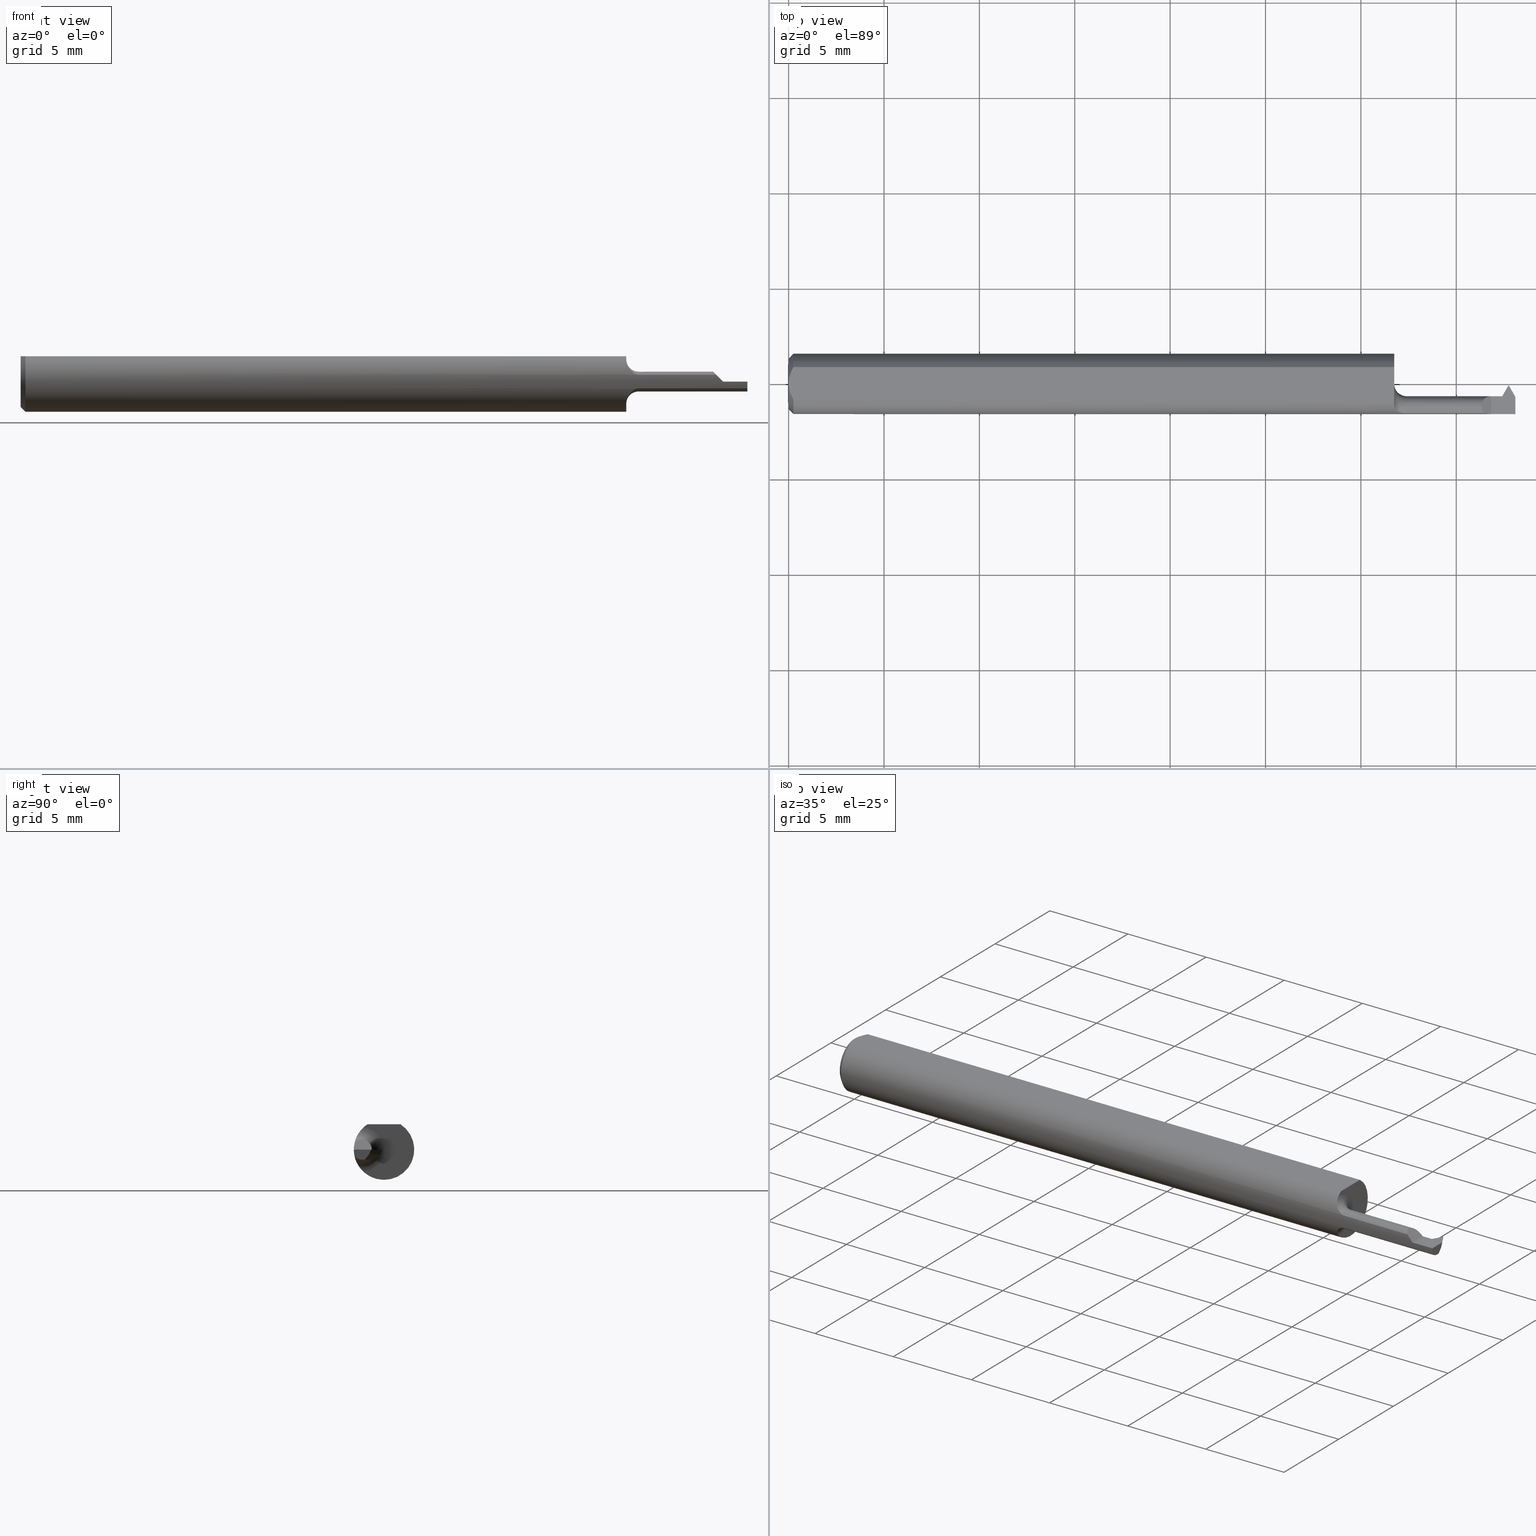
[diagram: canonical four-view strip — front | top / right | iso, engineering-drawing reading convention]
A machine part, canonical four-view strip (front | top / right | iso — engineering-drawing reading convention). The complete STEP part file that produces these views, byte-faithful:
ISO-10303-21;
HEADER;
FILE_DESCRIPTION (( 'STEP AP203' ),
    '1' );
FILE_NAME ('230022-TT060200.STEP',
    '2025-04-25T23:26:55',
    ( '' ),
    ( '' ),
    'SwSTEP 2.0',
    'SolidWorks 2024',
    '' );
FILE_SCHEMA (( 'CONFIG_CONTROL_DESIGN' ));
ENDSEC;

DATA;
#1 = DIRECTION ( 'NONE',  ( 3.846348412950270995E-17, -1.000000000000000000, 0.000000000000000000 ) ) ;
#2 = DIRECTION ( 'NONE',  ( -1.000000000000000000, -0.000000000000000000, -0.000000000000000000 ) ) ;
#3 = ORIENTED_EDGE ( 'NONE', *, *, #600, .F. ) ;
#4 = VECTOR ( 'NONE', #223, 39.37007874015748143 ) ;
#5 = CARTESIAN_POINT ( 'NONE',  ( 1.472798294077828807, -0.02534999999999998019, 0.000000000000000000 ) ) ;
#6 = CARTESIAN_POINT ( 'NONE',  ( 1.252087078649324781, -0.05320835086854511925, 0.03322816149382785966 ) ) ;
#7 = ORIENTED_EDGE ( 'NONE', *, *, #376, .T. ) ;
#8 = CARTESIAN_POINT ( 'NONE',  ( 1.470951421547187499, -0.02534999999999999060, 0.000000000000000000 ) ) ;
#9 = EDGE_CURVE ( 'NONE', #363, #492, #293, .T. ) ;
#10 = CARTESIAN_POINT ( 'NONE',  ( 1.500000000000000222, -0.02293526333106358367, 0.009332464125185995635 ) ) ;
#11 = EDGE_LOOP ( 'NONE', ( #14, #238, #382, #246 ) ) ;
#12 = CARTESIAN_POINT ( 'NONE',  ( 0.000000000000000000, 0.000000000000000000, 0.05234999999999997294 ) ) ;
#13 = CARTESIAN_POINT ( 'NONE',  ( 1.475581018059172633, -0.04585000000000002962, -0.02050000000000003555 ) ) ;
#14 = ORIENTED_EDGE ( 'NONE', *, *, #435, .T. ) ;
#15 = DATE_AND_TIME ( #29, #625 ) ;
#16 = VECTOR ( 'NONE', #591, 39.37007874015748143 ) ;
#17 = CARTESIAN_POINT ( 'NONE',  ( 1.472798294077828807, -0.02534999999999998019, 2.799589431923803002E-19 ) ) ;
#18 = VERTEX_POINT ( 'NONE', #97 ) ;
#19 = EDGE_CURVE ( 'NONE', #458, #546, #582, .T. ) ;
#20 = DIRECTION ( 'NONE',  ( 0.000000000000000000, 0.000000000000000000, -1.000000000000000000 ) ) ;
#21 = CC_DESIGN_SECURITY_CLASSIFICATION ( #254, ( #648 ) ) ;
#22 = CARTESIAN_POINT ( 'NONE',  ( 1.486500000000000155, -0.003350000000000004884, 0.000000000000000000 ) ) ;
#23 = VERTEX_POINT ( 'NONE', #641 ) ;
#24 = CYLINDRICAL_SURFACE ( 'NONE', #213, 0.02050000000000005290 ) ;
#25 = ORIENTED_EDGE ( 'NONE', *, *, #331, .T. ) ;
#26 = PERSON_AND_ORGANIZATION ( #183, #513 ) ;
#27 = DIMENSIONAL_EXPONENTS ( 1.000000000000000000, 0.000000000000000000, 0.000000000000000000, 0.000000000000000000, 0.000000000000000000, 0.000000000000000000, 0.000000000000000000 ) ;
#28 = DIRECTION ( 'NONE',  ( 4.529625918015469079E-15, -0.9799247046208295897, 0.1993679344171976342 ) ) ;
#29 = CALENDAR_DATE ( 2025, 25, 4 ) ;
#30 = B_SPLINE_CURVE_WITH_KNOTS ( 'NONE', 3,
 ( #440, #497, #6, #164, #659, #552, #229, #332 ),
 .UNSPECIFIED., .F., .F.,
 ( 4, 2, 2, 4 ),
 ( 4.183662842067274700E-06, 0.0006133011813381161964, 0.0009178599405861351647, 0.001222418699834154241 ),
 .UNSPECIFIED. ) ;
#31 = LOCAL_TIME ( 16, 26, 55.00000000000000000, #186 ) ;
#32 = EDGE_CURVE ( 'NONE', #569, #557, #489, .T. ) ;
#33 = CARTESIAN_POINT ( 'NONE',  ( 1.469838970708920556, -0.02590058561396286346, -0.005467870559428852743 ) ) ;
#34 = LINE ( 'NONE', #426, #261 ) ;
#35 = DIRECTION ( 'NONE',  ( 0.000000000000000000, 0.000000000000000000, -1.000000000000000000 ) ) ;
#36 = CARTESIAN_POINT ( 'NONE',  ( 0.01000000000000001582, 0.03386738844375224849, 0.05234999999999997294 ) ) ;
#37 = DIRECTION ( 'NONE',  ( -0.8486396879976035867, -0.4899623523104097989, 0.1993679344171976342 ) ) ;
#38 = CARTESIAN_POINT ( 'NONE',  ( 1.500000000000000222, 0.000000000000000000, 0.000000000000000000 ) ) ;
#39 = VECTOR ( 'NONE', #114, 39.37007874015748143 ) ;
#40 = ADVANCED_FACE ( 'NONE', ( #588 ), #468, .F. ) ;
#41 = PERSON_AND_ORGANIZATION ( #183, #513 ) ;
#42 = CARTESIAN_POINT ( 'NONE',  ( 0.01000000000000001582, 0.03386738844375224849, 0.05234999999999997294 ) ) ;
#43 = DIRECTION ( 'NONE',  ( -0.000000000000000000, 0.000000000000000000, 1.000000000000000000 ) ) ;
#44 = ORIENTED_EDGE ( 'NONE', *, *, #708, .F. ) ;
#45 = CC_DESIGN_PERSON_AND_ORGANIZATION_ASSIGNMENT ( #26, #624, ( #526 ) ) ;
#46 = DIRECTION ( 'NONE',  ( -1.000000000000000000, -0.000000000000000000, -0.000000000000000000 ) ) ;
#47 = EDGE_CURVE ( 'NONE', #303, #242, #263, .T. ) ;
#48 = CARTESIAN_POINT ( 'NONE',  ( 1.445250564478592015, -0.06235000000000000958, 0.004749435521408015490 ) ) ;
#49 = VERTEX_POINT ( 'NONE', #709 ) ;
#50 = LINE ( 'NONE', #500, #692 ) ;
#51 = DIRECTION ( 'NONE',  ( 0.000000000000000000, 0.000000000000000000, -1.000000000000000000 ) ) ;
#52 = EDGE_CURVE ( 'NONE', #49, #550, #253, .T. ) ;
#53 = VERTEX_POINT ( 'NONE', #262 ) ;
#54 = DIRECTION ( 'NONE',  ( 0.5000000000000042188, 0.8660254037844361541, 0.000000000000000000 ) ) ;
#55 = DIRECTION ( 'NONE',  ( 0.000000000000000000, -0.6427876096865350330, -0.7660444431189816772 ) ) ;
#56 = ORIENTED_EDGE ( 'NONE', *, *, #315, .T. ) ;
#57 = LINE ( 'NONE', #158, #177 ) ;
#58 = PLANE ( 'NONE',  #122 ) ;
#59 = ORIENTED_EDGE ( 'NONE', *, *, #248, .T. ) ;
#60 = ADVANCED_FACE ( 'NONE', ( #207 ), #86, .T. ) ;
#61 = LINE ( 'NONE', #162, #621 ) ;
#62 = CONICAL_SURFACE ( 'NONE', #524, 0.05235000000000005621, 0.7853981633974447263 ) ;
#63 = CARTESIAN_POINT ( 'NONE',  ( 1.274999999999999911, -0.06073604143947648748, -0.01409452979925874747 ) ) ;
#64 = ORIENTED_EDGE ( 'NONE', *, *, #686, .F. ) ;
#65 = CARTESIAN_POINT ( 'NONE',  ( 0.007163450771350545095, -0.02864528976618618133, 0.05234999999999997294 ) ) ;
#66 = CARTESIAN_POINT ( 'NONE',  ( 0.000000000000000000, 0.000000000000000000, 0.05234999999999997294 ) ) ;
#67 = ORIENTED_EDGE ( 'NONE', *, *, #639, .T. ) ;
#68 = DIRECTION ( 'NONE',  ( 0.000000000000000000, -1.000000000000000000, 0.000000000000000000 ) ) ;
#69 = ADVANCED_FACE ( 'NONE', ( #470 ), #191, .T. ) ;
#70 = ORIENTED_EDGE ( 'NONE', *, *, #221, .F. ) ;
#71 =( LENGTH_UNIT ( ) NAMED_UNIT ( * ) SI_UNIT ( $, .METRE. ) );
#72 = VECTOR ( 'NONE', #316, 39.37007874015748143 ) ;
#73 = AXIS2_PLACEMENT_3D ( 'NONE', #687, #184, #359 ) ;
#74 = DIRECTION ( 'NONE',  ( -0.5000000000000084377, 0.8660254037844337116, -3.001275745718258008E-17 ) ) ;
#75 = VERTEX_POINT ( 'NONE', #703 ) ;
#76 = APPROVAL_PERSON_ORGANIZATION ( #700, #501, #419 ) ;
#77 = CALENDAR_DATE ( 2025, 25, 4 ) ;
#78 = CARTESIAN_POINT ( 'NONE',  ( 1.485516618294335345, -0.007390262258351174528, -0.009999999999999849287 ) ) ;
#79 = ORIENTED_EDGE ( 'NONE', *, *, #661, .T. ) ;
#80 = FACE_OUTER_BOUND ( 'NONE', #416, .T. ) ;
#81 = DIRECTION ( 'NONE',  ( -0.7985882202808463060, 0.4610651239508160026, -0.3868795754558377875 ) ) ;
#82 = CARTESIAN_POINT ( 'NONE',  ( 0.000000000000000000, 0.000000000000000000, 0.000000000000000000 ) ) ;
#83 = ADVANCED_FACE ( 'NONE', ( #697 ), #149, .F. ) ;
#84 = CARTESIAN_POINT ( 'NONE',  ( 1.435905470200741219, -0.06073604143947652217, 0.01409452979925866420 ) ) ;
#85 = AXIS2_PLACEMENT_3D ( 'NONE', #431, #604, #274 ) ;
#86 = PLANE ( 'NONE',  #535 ) ;
#87 = VECTOR ( 'NONE', #538, 39.37007874015748143 ) ;
#88 = FACE_OUTER_BOUND ( 'NONE', #154, .T. ) ;
#89 = ORIENTED_EDGE ( 'NONE', *, *, #103, .T. ) ;
#90 = CALENDAR_DATE ( 2025, 25, 4 ) ;
#91 = DIRECTION ( 'NONE',  ( -0.7071067811865431318, 0.000000000000000000, -0.7071067811865520136 ) ) ;
#92 = DIRECTION ( 'NONE',  ( 1.000000000000000000, 0.000000000000000000, 0.000000000000000000 ) ) ;
#93 = DIRECTION ( 'NONE',  ( 0.7985882202808431973, 0.4610651239508192778, -0.3868795754558405076 ) ) ;
#94 = ADVANCED_FACE ( 'NONE', ( #88 ), #530, .F. ) ;
#95 = EDGE_LOOP ( 'NONE', ( #329, #172, #414, #201 ) ) ;
#96 = PLANE ( 'NONE',  #187 ) ;
#97 = CARTESIAN_POINT ( 'NONE',  ( 1.250000000000000000, -0.04274258451472191106, -0.04539376575039633099 ) ) ;
#98 = VECTOR ( 'NONE', #325, 39.37007874015748143 ) ;
#99 = CONICAL_SURFACE ( 'NONE', #239, 0.05235000000000005621, 0.7853981633974447263 ) ;
#100 = CC_DESIGN_PERSON_AND_ORGANIZATION_ASSIGNMENT ( #41, #651, ( #254 ) ) ;
#101 = DIRECTION ( 'NONE',  ( 1.000000000000000000, 0.000000000000000000, 0.000000000000000000 ) ) ;
#102 = EDGE_LOOP ( 'NONE', ( #128, #326, #7, #234 ) ) ;
#103 = EDGE_CURVE ( 'NONE', #627, #344, #638, .T. ) ;
#104 = LINE ( 'NONE', #556, #150 ) ;
#105 = ORIENTED_EDGE ( 'NONE', *, *, #364, .T. ) ;
#106 = DIRECTION ( 'NONE',  ( -1.000000000000000000, -0.000000000000000000, -0.000000000000000000 ) ) ;
#107 = ADVANCED_FACE ( 'NONE', ( #378 ), #138, .F. ) ;
#108 = DIRECTION ( 'NONE',  ( -1.000000000000000000, 0.000000000000000000, 1.224646799147359863E-16 ) ) ;
#109 = ORIENTED_EDGE ( 'NONE', *, *, #163, .F. ) ;
#110 = CIRCLE ( 'NONE', #161, 0.06235000000000000264 ) ;
#111 = DIRECTION ( 'NONE',  ( 0.000000000000000000, 0.000000000000000000, 1.000000000000000000 ) ) ;
#112 = LINE ( 'NONE', #337, #175 ) ;
#113 = ORIENTED_EDGE ( 'NONE', *, *, #347, .F. ) ;
#114 = DIRECTION ( 'NONE',  ( -1.000000000000000000, -0.000000000000000000, -0.000000000000000000 ) ) ;
#115 = CARTESIAN_POINT ( 'NONE',  ( 1.252117253329443791, -0.05323027456427581461, -0.03318292701701414799 ) ) ;
#116 = EDGE_CURVE ( 'NONE', #344, #75, #672, .T. ) ;
#117 = ORIENTED_EDGE ( 'NONE', *, *, #233, .F. ) ;
#118 = CARTESIAN_POINT ( 'NONE',  ( 1.477508393106610640, -1.476818358042274015, 0.2535462904163692244 ) ) ;
#119 = CARTESIAN_POINT ( 'NONE',  ( 1.250000000000000000, -0.04585000000000003656, 0.000000000000000000 ) ) ;
#120 = ORIENTED_EDGE ( 'NONE', *, *, #202, .F. ) ;
#121 = CLOSED_SHELL ( 'NONE', ( #418, #40, #444, #107, #482, #453, #567, #94, #695, #531, #195, #623, #459, #698, #545, #388, #586, #383, #83, #69, #60 ) ) ;
#122 = AXIS2_PLACEMENT_3D ( 'NONE', #389, #340, #108 ) ;
#123 = FACE_OUTER_BOUND ( 'NONE', #508, .T. ) ;
#124 = CARTESIAN_POINT ( 'NONE',  ( 1.435905470200741219, -0.06073604143947652217, 0.01409452979925866420 ) ) ;
#125 = EDGE_LOOP ( 'NONE', ( #684, #89, #554, #518 ) ) ;
#126 = DIRECTION ( 'NONE',  ( 1.000000000000000000, 0.000000000000000000, 0.000000000000000000 ) ) ;
#127 = CARTESIAN_POINT ( 'NONE',  ( 1.473739173235127708, -0.02697965050423148728, -0.008009988134028740367 ) ) ;
#128 = ORIENTED_EDGE ( 'NONE', *, *, #275, .F. ) ;
#129 = EDGE_CURVE ( 'NONE', #515, #677, #393, .T. ) ;
#130 = ORIENTED_EDGE ( 'NONE', *, *, #323, .F. ) ;
#131 = LINE ( 'NONE', #693, #271 ) ;
#132 = AXIS2_PLACEMENT_3D ( 'NONE', #155, #217, #436 ) ;
#133 = VERTEX_POINT ( 'NONE', #494 ) ;
#134 = CARTESIAN_POINT ( 'NONE',  ( 0.000000000000000000, 0.000000000000000000, 0.000000000000000000 ) ) ;
#135 = DIRECTION ( 'NONE',  ( 0.8486396879976055851, -0.4899623523104063572, 0.1993679344171976342 ) ) ;
#136 = ORIENTED_EDGE ( 'NONE', *, *, #507, .F. ) ;
#137 = EDGE_CURVE ( 'NONE', #374, #363, #597, .T. ) ;
#138 = PLANE ( 'NONE',  #632 ) ;
#139 = PERSON_AND_ORGANIZATION ( #183, #513 ) ;
#140 = DIRECTION ( 'NONE',  ( -0.000000000000000000, 4.075592278182146697E-17, 1.000000000000000000 ) ) ;
#141 = ORIENTED_EDGE ( 'NONE', *, *, #427, .F. ) ;
#142 = EDGE_CURVE ( 'NONE', #370, #18, #281, .T. ) ;
#143 = PLANE ( 'NONE',  #321 ) ;
#144 = CARTESIAN_POINT ( 'NONE',  ( 1.486483381705665519, -0.007390262258356626764, -0.01000000000000609603 ) ) ;
#145 = ORIENTED_EDGE ( 'NONE', *, *, #142, .T. ) ;
#146 = APPROVAL_DATE_TIME ( #196, #501 ) ;
#147 = CARTESIAN_POINT ( 'NONE',  ( 1.671951421547187788, -0.04584999999999996717, -0.02050000000000002168 ) ) ;
#148 = CARTESIAN_POINT ( 'NONE',  ( 0.004671770759546950945, 0.02323517832780109052, 0.05234999999999998682 ) ) ;
#149 = PLANE ( 'NONE',  #665 ) ;
#150 = VECTOR ( 'NONE', #663, 39.37007874015748854 ) ;
#151 = ORIENTED_EDGE ( 'NONE', *, *, #355, .T. ) ;
#152 = VECTOR ( 'NONE', #74, 39.37007874015748854 ) ;
#153 = DIRECTION ( 'NONE',  ( 0.000000000000000000, 0.000000000000000000, -1.000000000000000000 ) ) ;
#154 = EDGE_LOOP ( 'NONE', ( #657, #79, #25, #446 ) ) ;
#155 = CARTESIAN_POINT ( 'NONE',  ( 0.000000000000000000, 0.000000000000000000, 0.000000000000000000 ) ) ;
#156 = CARTESIAN_POINT ( 'NONE',  ( 1.250000000000000000, -0.04274258451472191106, -0.04539376575039633099 ) ) ;
#157 = EDGE_LOOP ( 'NONE', ( #192, #109, #543, #664, #44, #3, #599, #629 ) ) ;
#158 = CARTESIAN_POINT ( 'NONE',  ( 1.250000000000000000, -0.02697965050422692843, -0.008009988134034759857 ) ) ;
#159 = DIRECTION ( 'NONE',  ( 0.000000000000000000, 0.000000000000000000, 1.000000000000000000 ) ) ;
#160 = ORIENTED_EDGE ( 'NONE', *, *, #32, .F. ) ;
#161 = AXIS2_PLACEMENT_3D ( 'NONE', #581, #528, #312 ) ;
#162 = CARTESIAN_POINT ( 'NONE',  ( 1.671951421547187788, -0.04584999999999996717, -0.02050000000000002168 ) ) ;
#163 = EDGE_CURVE ( 'NONE', #610, #242, #104, .T. ) ;
#164 = CARTESIAN_POINT ( 'NONE',  ( 1.258393315188583994, -0.05769563112685629352, 0.02388861346910408148 ) ) ;
#165 = ORIENTED_EDGE ( 'NONE', *, *, #427, .T. ) ;
#166 = LINE ( 'NONE', #272, #346 ) ;
#167 = CARTESIAN_POINT ( 'NONE',  ( 1.500000000000000222, -0.04585000000000002962, 0.000000000000000000 ) ) ;
#168 = APPROVAL ( #575, 'UNSPECIFIED' ) ;
#169 = ORIENTED_EDGE ( 'NONE', *, *, #715, .T. ) ;
#170 = PLANE ( 'NONE',  #634 ) ;
#171 = PLANE ( 'NONE',  #73 ) ;
#172 = ORIENTED_EDGE ( 'NONE', *, *, #47, .T. ) ;
#173 = EDGE_CURVE ( 'NONE', #53, #677, #559, .T. ) ;
#174 = PRODUCT_DEFINITION_SHAPE ( 'NONE', 'NONE',  #526 ) ;
#175 = VECTOR ( 'NONE', #101, 39.37007874015748143 ) ;
#176 = PERSON_AND_ORGANIZATION ( #183, #513 ) ;
#177 = VECTOR ( 'NONE', #231, 39.37007874015748143 ) ;
#178 = CARTESIAN_POINT ( 'NONE',  ( 1.545688868235870261, -0.1187477191428603085, -0.02050000000000001821 ) ) ;
#179 = ORIENTED_EDGE ( 'NONE', *, *, #221, .T. ) ;
#180 = DIRECTION ( 'NONE',  ( 5.352393807291138713E-15, -0.6427876096865350330, -0.7660444431189816772 ) ) ;
#181 = ORIENTED_EDGE ( 'NONE', *, *, #666, .F. ) ;
#182 = DIRECTION ( 'NONE',  ( -0.000000000000000000, 1.000000000000000000, -0.000000000000000000 ) ) ;
#183 = PERSON ( 'UNSPECIFIED', 'UNSPECIFIED', 'UNSPECIFIED', ('UNSPECIFIED'), ('UNSPECIFIED'), ('UNSPECIFIED') ) ;
#184 = DIRECTION ( 'NONE',  ( 0.000000000000000000, -0.9271838545667896447, 0.3746065934159064081 ) ) ;
#185 = ORIENTED_EDGE ( 'NONE', *, *, #507, .T. ) ;
#186 = COORDINATED_UNIVERSAL_TIME_OFFSET ( 8, 0, .BEHIND. ) ;
#187 = AXIS2_PLACEMENT_3D ( 'NONE', #372, #37, #259 ) ;
#188 = ORIENTED_EDGE ( 'NONE', *, *, #409, .T. ) ;
#189 = LINE ( 'NONE', #635, #226 ) ;
#190 = CARTESIAN_POINT ( 'NONE',  ( 1.274999999999999911, -0.04585000000000003656, 0.000000000000000000 ) ) ;
#191 = PLANE ( 'NONE',  #572 ) ;
#192 = ORIENTED_EDGE ( 'NONE', *, *, #487, .F. ) ;
#193 = APPROVAL_DATE_TIME ( #408, #637 ) ;
#194 = DIRECTION ( 'NONE',  ( -0.9799247046208295897, 0.000000000000000000, 0.1993679344171976342 ) ) ;
#195 = ADVANCED_FACE ( 'NONE', ( #656 ), #58, .F. ) ;
#196 = DATE_AND_TIME ( #90, #243 ) ;
#197 = DIRECTION ( 'NONE',  ( 1.000000000000000000, 3.846348412950270995E-17, 0.000000000000000000 ) ) ;
#198 = PLANE ( 'NONE',  #574 ) ;
#199 = VECTOR ( 'NONE', #680, 39.37007874015748854 ) ;
#200 = CARTESIAN_POINT ( 'NONE',  ( 1.472798294077828807, -0.02534999999999998019, 0.000000000000000000 ) ) ;
#201 = ORIENTED_EDGE ( 'NONE', *, *, #467, .T. ) ;
#202 = EDGE_CURVE ( 'NONE', #334, #492, #522, .T. ) ;
#203 = DIRECTION ( 'NONE',  ( -0.7071067811865519026, 0.000000000000000000, 0.7071067811865430208 ) ) ;
#204 = DIRECTION ( 'NONE',  ( 0.000000000000000000, 0.000000000000000000, -1.000000000000000000 ) ) ;
#205 = CARTESIAN_POINT ( 'NONE',  ( 0.007185421074056362600, 0.02868573718286564905, 0.05234999999999997294 ) ) ;
#206 = SECURITY_CLASSIFICATION_LEVEL ( 'unclassified' ) ;
#207 = FACE_OUTER_BOUND ( 'NONE', #653, .T. ) ;
#208 = VECTOR ( 'NONE', #652, 39.37007874015748854 ) ;
#209 = CARTESIAN_POINT ( 'NONE',  ( 1.249999999999999778, -0.04862953753773307380, -0.03985063481687040055 ) ) ;
#210 = EDGE_CURVE ( 'NONE', #495, #344, #609, .T. ) ;
#211 = VECTOR ( 'NONE', #180, 39.37007874015748143 ) ;
#212 = ORIENTED_EDGE ( 'NONE', *, *, #355, .F. ) ;
#213 = AXIS2_PLACEMENT_3D ( 'NONE', #119, #576, #68 ) ;
#214 = LOCAL_TIME ( 16, 26, 55.00000000000000000, #430 ) ;
#215 = CARTESIAN_POINT ( 'NONE',  ( 1.485500000000000265, -0.003350000000000004884, 0.000000000000000000 ) ) ;
#216 = ORIENTED_EDGE ( 'NONE', *, *, #553, .T. ) ;
#217 = DIRECTION ( 'NONE',  ( -1.000000000000000000, -0.000000000000000000, -0.000000000000000000 ) ) ;
#218 =( BOUNDED_CURVE ( )  B_SPLINE_CURVE ( 3, ( #124, #236, #615, #460 ),
 .UNSPECIFIED., .F., .F. ) 
 B_SPLINE_CURVE_WITH_KNOTS ( ( 4, 4 ),
 ( 5.470482129107344882, 7.853981633974481902 ),
 .UNSPECIFIED. ) 
 CURVE ( )  GEOMETRIC_REPRESENTATION_ITEM ( )  RATIONAL_B_SPLINE_CURVE ( ( 1.000000000000000000, 0.5800232588578040360, 0.5800232588578040360, 1.000000000000000000 ) ) 
 REPRESENTATION_ITEM ( '' )  );
#219 = CARTESIAN_POINT ( 'NONE',  ( 1.267174290130400394, -0.06030086259927001230, -0.01605959189429576051 ) ) ;
#220 = VERTEX_POINT ( 'NONE', #381 ) ;
#221 = EDGE_CURVE ( 'NONE', #23, #289, #30, .T. ) ;
#222 = CARTESIAN_POINT ( 'NONE',  ( 1.500000000000000222, -0.03961227801801520815, -0.02050000000000001821 ) ) ;
#223 = DIRECTION ( 'NONE',  ( -0.1073577180708719797, 0.5233600211179580963, 0.8453216007331325610 ) ) ;
#224 = ORIENTED_EDGE ( 'NONE', *, *, #173, .T. ) ;
#225 = AXIS2_PLACEMENT_3D ( 'NONE', #200, #28, #429 ) ;
#226 = VECTOR ( 'NONE', #685, 39.37007874015748143 ) ;
#227 = CARTESIAN_POINT ( 'NONE',  ( 1.450000000000000178, -0.02534999999999998019, 3.061616997868399042E-17 ) ) ;
#228 = CC_DESIGN_DATE_AND_TIME_ASSIGNMENT ( #544, #264, ( #254 ) ) ;
#229 = CARTESIAN_POINT ( 'NONE',  ( 1.270918107686048959, -0.06073604143947845813, 0.01409452979925067233 ) ) ;
#230 = EDGE_LOOP ( 'NONE', ( #67, #707 ) ) ;
#231 = DIRECTION ( 'NONE',  ( -1.000000000000000000, -3.846348412950270995E-17, -0.000000000000000000 ) ) ;
#232 = LINE ( 'NONE', #514, #498 ) ;
#233 = EDGE_CURVE ( 'NONE', #605, #442, #671, .T. ) ;
#234 = ORIENTED_EDGE ( 'NONE', *, *, #315, .F. ) ;
#235 = CYLINDRICAL_SURFACE ( 'NONE', #132, 0.06235000000000000264 ) ;
#236 = CARTESIAN_POINT ( 'NONE',  ( 1.420010247461813702, -0.04568598992171429146, 0.02998975253818596948 ) ) ;
#237 = EDGE_CURVE ( 'NONE', #589, #711, #112, .T. ) ;
#238 = ORIENTED_EDGE ( 'NONE', *, *, #715, .F. ) ;
#239 = AXIS2_PLACEMENT_3D ( 'NONE', #564, #472, #204 ) ;
#240 = CALENDAR_DATE ( 2025, 25, 4 ) ;
#241 = DIRECTION ( 'NONE',  ( -0.1143501000964234349, 0.1980601832175888644, 0.9734969021171833159 ) ) ;
#242 = VERTEX_POINT ( 'NONE', #215 ) ;
#243 = LOCAL_TIME ( 16, 26, 55.00000000000000000, #540 ) ;
#244 = LENGTH_MEASURE_WITH_UNIT ( LENGTH_MEASURE( 0.02539999999999999897 ), #71 );
#245 = DIRECTION ( 'NONE',  ( 0.4999999999999948375, -0.8660254037844414832, 0.000000000000000000 ) ) ;
#246 = ORIENTED_EDGE ( 'NONE', *, *, #323, .T. ) ;
#247 = PERSON_AND_ORGANIZATION ( #183, #513 ) ;
#248 = EDGE_CURVE ( 'NONE', #53, #49, #619, .T. ) ;
#249 = CARTESIAN_POINT ( 'NONE',  ( 1.373475710773593983, -0.06073604143947651524, 0.01409452979925868328 ) ) ;
#250 = ORIENTED_EDGE ( 'NONE', *, *, #210, .T. ) ;
#251 = APPLICATION_PROTOCOL_DEFINITION ( 'international standard', 'config_control_design', 1994, #523 ) ;
#252 = VECTOR ( 'NONE', #585, 39.37007874015748143 ) ;
#253 = LINE ( 'NONE', #424, #72 ) ;
#254 = SECURITY_CLASSIFICATION ( '', '', #206 ) ;
#255 = ORIENTED_EDGE ( 'NONE', *, *, #129, .T. ) ;
#256 = CARTESIAN_POINT ( 'NONE',  ( 1.486496470769701705, -0.004208031256919916863, -0.002123701883822748035 ) ) ;
#257 = DIRECTION ( 'NONE',  ( 0.1993679344171976064, 0.000000000000000000, 0.9799247046208294787 ) ) ;
#258 = EDGE_CURVE ( 'NONE', #711, #23, #679, .T. ) ;
#259 = DIRECTION ( 'NONE',  ( 0.4999999999999948375, -0.8660254037844414832, 0.000000000000000000 ) ) ;
#260 = VECTOR ( 'NONE', #650, 39.37007874015748143 ) ;
#261 = VECTOR ( 'NONE', #541, 39.37007874015749564 ) ;
#262 = CARTESIAN_POINT ( 'NONE',  ( 1.500000000000000222, -0.06073604143947645279, -0.01409452979925867808 ) ) ;
#263 = LINE ( 'NONE', #480, #16 ) ;
#264 = DATE_TIME_ROLE ( 'classification_date' ) ;
#265 = EDGE_CURVE ( 'NONE', #133, #492, #437, .T. ) ;
#266 = CARTESIAN_POINT ( 'NONE',  ( 1.531535333950211131, -0.3079965118900795940, -0.4632393879296300976 ) ) ;
#267 = ORIENTED_EDGE ( 'NONE', *, *, #116, .F. ) ;
#268 = CARTESIAN_POINT ( 'NONE',  ( 1.270918043451031210, -0.06073604143947650830, -0.01409452979925873532 ) ) ;
#269 = AXIS2_PLACEMENT_3D ( 'NONE', #167, #433, #598 ) ;
#270 = ORIENTED_EDGE ( 'NONE', *, *, #237, .F. ) ;
#271 = VECTOR ( 'NONE', #182, 39.37007874015748143 ) ;
#272 = CARTESIAN_POINT ( 'NONE',  ( -3.937007874019685528E-05, -0.01620080838571287193, -0.02050000000000002168 ) ) ;
#273 = CC_DESIGN_APPROVAL ( #168, ( #526 ) ) ;
#274 = DIRECTION ( 'NONE',  ( 0.000000000000000000, 1.000000000000000000, 0.000000000000000000 ) ) ;
#275 = EDGE_CURVE ( 'NONE', #546, #434, #451, .T. ) ;
#276 = ORIENTED_EDGE ( 'NONE', *, *, #666, .T. ) ;
#277 = FACE_OUTER_BOUND ( 'NONE', #307, .T. ) ;
#278 = CARTESIAN_POINT ( 'NONE',  ( -3.937007874019685528E-05, -0.007390262258351511931, -0.01000000000000000021 ) ) ;
#279 = EDGE_LOOP ( 'NONE', ( #636, #169, #622, #669, #64 ) ) ;
#280 = DIRECTION ( 'NONE',  ( -1.000000000000000000, -3.846348412950270995E-17, -0.000000000000000000 ) ) ;
#281 = B_SPLINE_CURVE_WITH_KNOTS ( 'NONE', 3,
 ( #483, #268, #219, #714, #710, #115, #209, #156 ),
 .UNSPECIFIED., .F., .F.,
 ( 4, 2, 2, 4 ),
 ( 1.967541529506627283E-07, 0.0003062111729972520212, 0.0006122255918415536171, 0.001224254429530156809 ),
 .UNSPECIFIED. ) ;
#282 = CARTESIAN_POINT ( 'NONE',  ( 0.01000000000000001582, 0.000000000000000000, 0.000000000000000000 ) ) ;
#283 = ORIENTED_EDGE ( 'NONE', *, *, #631, .F. ) ;
#284 = AXIS2_PLACEMENT_3D ( 'NONE', #668, #2, #51 ) ;
#285 = VECTOR ( 'NONE', #197, 39.37007874015748143 ) ;
#286 = DIRECTION ( 'NONE',  ( 0.9934405138748531039, 0.02279774325662875870, 0.1120544880603747268 ) ) ;
#287 = MANIFOLD_SOLID_BREP ( 'Cut-Sweep1', #121 ) ;
#288 = DIRECTION ( 'NONE',  ( 0.000000000000000000, -1.000000000000000000, 0.000000000000000000 ) ) ;
#289 = VERTEX_POINT ( 'NONE', #502 ) ;
#290 = CARTESIAN_POINT ( 'NONE',  ( 0.004679365186781183836, -0.02325953974079657954, 0.05234999999999997988 ) ) ;
#291 = CARTESIAN_POINT ( 'NONE',  ( 1.475386358967280431, -0.03736748372183631289, -0.02050000000000005984 ) ) ;
#292 = ORIENTED_EDGE ( 'NONE', *, *, #553, .F. ) ;
#293 = B_SPLINE_CURVE_WITH_KNOTS ( 'NONE', 3,
 ( #694, #375, #373, #148, #205, #36 ),
 .UNSPECIFIED., .F., .F.,
 ( 4, 2, 4 ),
 ( 0.003093386807937201135, 0.003544501666246021275, 0.003995616524554840981 ),
 .UNSPECIFIED. ) ;
#294 = FACE_OUTER_BOUND ( 'NONE', #230, .T. ) ;
#295 = LINE ( 'NONE', #302, #333 ) ;
#296 = ORIENTED_EDGE ( 'NONE', *, *, #32, .T. ) ;
#297 = AXIS2_PLACEMENT_3D ( 'NONE', #670, #399, #658 ) ;
#298 =( NAMED_UNIT ( * ) PLANE_ANGLE_UNIT ( ) SI_UNIT ( $, .RADIAN. ) );
#299 = CARTESIAN_POINT ( 'NONE',  ( 0.01000000000000001582, 0.000000000000000000, -0.06235000000000000264 ) ) ;
#300 = ORIENTED_EDGE ( 'NONE', *, *, #331, .F. ) ;
#301 = CARTESIAN_POINT ( 'NONE',  ( 1.500000000000000222, -0.03080173189065360181, -0.009999999999999849287 ) ) ;
#302 = CARTESIAN_POINT ( 'NONE',  ( 1.472798294077828807, -0.02534999999999998019, 0.000000000000000000 ) ) ;
#303 = VERTEX_POINT ( 'NONE', #78 ) ;
#304 = CC_DESIGN_PERSON_AND_ORGANIZATION_ASSIGNMENT ( #455, #570, ( #504 ) ) ;
#305 = APPROVAL_ROLE ( '' ) ;
#306 = CARTESIAN_POINT ( 'NONE',  ( 1.373475710773593983, -0.06073604143947651524, -0.01409452979925868328 ) ) ;
#307 = EDGE_LOOP ( 'NONE', ( #136, #224, #411, #688, #633, #70, #579, #270, #391, #602, #512, #464, #503 ) ) ;
#308 = DIRECTION ( 'NONE',  ( 1.000000000000000000, 0.000000000000000000, 0.000000000000000000 ) ) ;
#309 = VECTOR ( 'NONE', #560, 39.37007874015748143 ) ;
#310 = EDGE_CURVE ( 'NONE', #303, #627, #571, .T. ) ;
#311 = AXIS2_PLACEMENT_3D ( 'NONE', #118, #286, #335 ) ;
#312 = DIRECTION ( 'NONE',  ( 0.000000000000000000, 1.000000000000000000, 0.000000000000000000 ) ) ;
#313 = EDGE_LOOP ( 'NONE', ( #613, #461, #438, #120 ) ) ;
#314 = CARTESIAN_POINT ( 'NONE',  ( 0.000000000000000000, 0.000000000000000000, 0.000000000000000000 ) ) ;
#315 = EDGE_CURVE ( 'NONE', #434, #515, #683, .T. ) ;
#316 = DIRECTION ( 'NONE',  ( 0.000000000000000000, 1.000000000000000000, -4.075592278182146697E-17 ) ) ;
#317 = ORIENTED_EDGE ( 'NONE', *, *, #708, .T. ) ;
#318 = PERSON_AND_ORGANIZATION_ROLE ( 'design_supplier' ) ;
#319 = FACE_OUTER_BOUND ( 'NONE', #313, .T. ) ;
#320 = DIRECTION ( 'NONE',  ( -0.5000000000000083267, 0.8660254037844337116, 0.000000000000000000 ) ) ;
#321 = AXIS2_PLACEMENT_3D ( 'NONE', #423, #135, #368 ) ;
#322 = DIRECTION ( 'NONE',  ( -1.000000000000000000, 0.000000000000000000, -0.000000000000000000 ) ) ;
#323 = EDGE_CURVE ( 'NONE', #23, #18, #712, .T. ) ;
#324 = PERSON_AND_ORGANIZATION ( #183, #513 ) ;
#325 = DIRECTION ( 'NONE',  ( 0.000000000000000000, -1.000000000000000000, 0.000000000000000000 ) ) ;
#326 = ORIENTED_EDGE ( 'NONE', *, *, #467, .F. ) ;
#327 = UNCERTAINTY_MEASURE_WITH_UNIT (LENGTH_MEASURE( 1.000000000000000082E-05 ), #678, 'distance_accuracy_value', 'NONE');
#328 = CARTESIAN_POINT ( 'NONE',  ( 1.475684376837079537, -0.05035398955201253468, -0.02050000000000002168 ) ) ;
#329 = ORIENTED_EDGE ( 'NONE', *, *, #608, .F. ) ;
#330 = CARTESIAN_POINT ( 'NONE',  ( 1.630958352158234037, 0.06235000000000000264, 0.05234999999999997294 ) ) ;
#331 = EDGE_CURVE ( 'NONE', #569, #557, #396, .T. ) ;
#332 = CARTESIAN_POINT ( 'NONE',  ( 1.274999999999999911, -0.06073604143947648748, 0.01409452979925874747 ) ) ;
#333 = VECTOR ( 'NONE', #400, 39.37007874015748143 ) ;
#334 = VERTEX_POINT ( 'NONE', #299 ) ;
#335 = DIRECTION ( 'NONE',  ( 0.1120836188533305133, 0.000000000000000000, -0.9936987784961504033 ) ) ;
#336 = CC_DESIGN_APPROVAL ( #637, ( #648 ) ) ;
#337 = CARTESIAN_POINT ( 'NONE',  ( 0.000000000000000000, -0.03386738844375224849, 0.05234999999999997294 ) ) ;
#338 = ORIENTED_EDGE ( 'NONE', *, *, #412, .T. ) ;
#339 = LINE ( 'NONE', #606, #537 ) ;
#340 = DIRECTION ( 'NONE',  ( -1.224646799147359863E-16, 0.000000000000000000, -1.000000000000000000 ) ) ;
#341 = ORIENTED_EDGE ( 'NONE', *, *, #275, .T. ) ;
#342 = CARTESIAN_POINT ( 'NONE',  ( 1.450000000000000178, -0.06235000000000005121, 6.123233995736799470E-18 ) ) ;
#343 = DIRECTION ( 'NONE',  ( 0.5000000000000084377, -0.8660254037844337116, 0.000000000000000000 ) ) ;
#344 = VERTEX_POINT ( 'NONE', #410 ) ;
#345 = B_SPLINE_CURVE_WITH_KNOTS ( 'NONE', 3,
 ( #563, #65, #290, #505, #547, #12 ),
 .UNSPECIFIED., .F., .F.,
 ( 4, 2, 4 ),
 ( 0.002189598257423869179, 0.002641492532680535157, 0.003093386807937201135 ),
 .UNSPECIFIED. ) ;
#346 = VECTOR ( 'NONE', #395, 39.37007874015748143 ) ;
#347 = EDGE_CURVE ( 'NONE', #550, #458, #628, .T. ) ;
#348 = CARTESIAN_POINT ( 'NONE',  ( 0.01000000000000001582, 0.000000000000000000, 0.000000000000000000 ) ) ;
#349 = FACE_OUTER_BOUND ( 'NONE', #432, .T. ) ;
#350 = ORIENTED_EDGE ( 'NONE', *, *, #364, .F. ) ;
#351 = CARTESIAN_POINT ( 'NONE',  ( 1.250000000000000000, -0.03386738844375225543, 0.05234999999999997294 ) ) ;
#352 = DIRECTION ( 'NONE',  ( 0.7071067811865499042, 0.000000000000000000, -0.7071067811865450192 ) ) ;
#353 = EDGE_LOOP ( 'NONE', ( #283, #360, #188, #573, #532 ) ) ;
#354 = LINE ( 'NONE', #22, #643 ) ;
#355 = EDGE_CURVE ( 'NONE', #495, #366, #466, .T. ) ;
#356 = ORIENTED_EDGE ( 'NONE', *, *, #661, .F. ) ;
#357 = AXIS2_PLACEMENT_3D ( 'NONE', #617, #280, #1 ) ;
#358 = APPLICATION_PROTOCOL_DEFINITION ( 'international standard', 'config_control_design', 1994, #566 ) ;
#359 = DIRECTION ( 'NONE',  ( 0.000000000000000000, -0.3746065934159064081, -0.9271838545667896447 ) ) ;
#360 = ORIENTED_EDGE ( 'NONE', *, *, #511, .T. ) ;
#361 = CC_DESIGN_PERSON_AND_ORGANIZATION_ASSIGNMENT ( #324, #318, ( #648 ) ) ;
#362 = LINE ( 'NONE', #301, #681 ) ;
#363 = VERTEX_POINT ( 'NONE', #66 ) ;
#364 = EDGE_CURVE ( 'NONE', #442, #592, #218, .T. ) ;
#365 =( NAMED_UNIT ( * ) SI_UNIT ( $, .STERADIAN. ) SOLID_ANGLE_UNIT ( ) );
#366 = VERTEX_POINT ( 'NONE', #127 ) ;
#367 = EDGE_CURVE ( 'NONE', #374, #334, #232, .T. ) ;
#368 = DIRECTION ( 'NONE',  ( 0.4999999999999913403, 0.8660254037844434816, 0.000000000000000000 ) ) ;
#369 = CARTESIAN_POINT ( 'NONE',  ( 1.470389556322883484, -0.02534999999999997325, -0.002761655807752544118 ) ) ;
#370 = VERTEX_POINT ( 'NONE', #63 ) ;
#371 = CARTESIAN_POINT ( 'NONE',  ( 1.450000000000000178, -0.2500000000000000555, 6.123233995736799470E-18 ) ) ;
#372 = CARTESIAN_POINT ( 'NONE',  ( 1.486500000000000155, -0.003350000000000004884, 0.000000000000000000 ) ) ;
#373 = CARTESIAN_POINT ( 'NONE',  ( 0.001063697276021587047, 0.01189177144351697378, 0.05234999999999997988 ) ) ;
#374 = VERTEX_POINT ( 'NONE', #448 ) ;
#375 = CARTESIAN_POINT ( 'NONE',  ( -8.573957617566337510E-16, 0.005954997531773999035, 0.05234999999999997294 ) ) ;
#376 = EDGE_CURVE ( 'NONE', #220, #515, #354, .T. ) ;
#377 = AXIS2_PLACEMENT_3D ( 'NONE', #190, #420, #469 ) ;
#378 = FACE_OUTER_BOUND ( 'NONE', #596, .T. ) ;
#379 = PRODUCT_RELATED_PRODUCT_CATEGORY ( 'detail', '', ( #504 ) ) ;
#380 = CC_DESIGN_APPROVAL ( #501, ( #254 ) ) ;
#381 = CARTESIAN_POINT ( 'NONE',  ( 1.486500000000000155, -0.003350000000000004884, 0.000000000000000000 ) ) ;
#382 = ORIENTED_EDGE ( 'NONE', *, *, #258, .T. ) ;
#383 = ADVANCED_FACE ( 'NONE', ( #675 ), #171, .F. ) ;
#384 = CARTESIAN_POINT ( 'NONE',  ( 1.485516618294335345, -0.01620080838571287193, -0.02050000000000002862 ) ) ;
#385 = DIRECTION ( 'NONE',  ( -0.02294223196863902012, 0.9997367923570168458, -4.062482139983457839E-17 ) ) ;
#386 = ORIENTED_EDGE ( 'NONE', *, *, #520, .T. ) ;
#387 = CARTESIAN_POINT ( 'NONE',  ( 1.469321771042962466, -0.02697965050422499594, -0.008009988134030214882 ) ) ;
#388 = ADVANCED_FACE ( 'NONE', ( #690 ), #24, .T. ) ;
#389 = CARTESIAN_POINT ( 'NONE',  ( 1.500000000000000222, -0.2500000000000000555, 0.000000000000000000 ) ) ;
#390 = VECTOR ( 'NONE', #463, 39.37007874015748143 ) ;
#391 = ORIENTED_EDGE ( 'NONE', *, *, #676, .T. ) ;
#392 = DIRECTION ( 'NONE',  ( 1.000000000000000000, 3.846348412950270995E-17, 0.000000000000000000 ) ) ;
#393 = LINE ( 'NONE', #612, #98 ) ;
#394 = EDGE_LOOP ( 'NONE', ( #296, #300 ) ) ;
#395 = DIRECTION ( 'NONE',  ( 1.000000000000000000, -0.000000000000000000, -0.000000000000000000 ) ) ;
#396 = LINE ( 'NONE', #506, #199 ) ;
#397 = EDGE_CURVE ( 'NONE', #557, #610, #295, .T. ) ;
#398 = ORIENTED_EDGE ( 'NONE', *, *, #137, .F. ) ;
#399 = DIRECTION ( 'NONE',  ( -1.000000000000000000, -0.000000000000000000, -0.000000000000000000 ) ) ;
#400 = DIRECTION ( 'NONE',  ( 1.000000000000000000, 4.622422413330374552E-15, -0.000000000000000000 ) ) ;
#401 = EDGE_LOOP ( 'NONE', ( #350, #117, #317 ) ) ;
#402 = VECTOR ( 'NONE', #343, 39.37007874015748143 ) ;
#403 = AXIS2_PLACEMENT_3D ( 'NONE', #348, #490, #447 ) ;
#404 = CC_DESIGN_DATE_AND_TIME_ASSIGNMENT ( #15, #450, ( #526 ) ) ;
#405 = APPROVAL_STATUS ( 'not_yet_approved' ) ;
#406 = CARTESIAN_POINT ( 'NONE',  ( 1.474695953239303581, -0.03029403366202148423, -0.01581818553757013968 ) ) ;
#407 = ORIENTED_EDGE ( 'NONE', *, *, #19, .T. ) ;
#408 = DATE_AND_TIME ( #240, #31 ) ;
#409 = EDGE_CURVE ( 'NONE', #366, #610, #510, .T. ) ;
#410 = CARTESIAN_POINT ( 'NONE',  ( 1.475306449763415850, -0.03388533903510553003, -0.02049999999999999392 ) ) ;
#411 = ORIENTED_EDGE ( 'NONE', *, *, #600, .T. ) ;
#412 = EDGE_CURVE ( 'NONE', #289, #442, #517, .T. ) ;
#413 = DIRECTION ( 'NONE',  ( -1.000000000000000000, -0.000000000000000000, -0.000000000000000000 ) ) ;
#414 = ORIENTED_EDGE ( 'NONE', *, *, #487, .T. ) ;
#415 = LINE ( 'NONE', #306, #252 ) ;
#416 = EDGE_LOOP ( 'NONE', ( #488, #276, #113, #565, #216, #250 ) ) ;
#417 = CARTESIAN_POINT ( 'NONE',  ( 1.470951421547187499, -0.02534999999999999060, 0.000000000000000000 ) ) ;
#418 = ADVANCED_FACE ( 'NONE', ( #349 ), #99, .T. ) ;
#419 = APPROVAL_ROLE ( '' ) ;
#420 = DIRECTION ( 'NONE',  ( -1.000000000000000000, -3.846348412950270995E-17, -0.000000000000000000 ) ) ;
#421 = CIRCLE ( 'NONE', #377, 0.02050000000000007719 ) ;
#422 = FACE_OUTER_BOUND ( 'NONE', #401, .T. ) ;
#423 = CARTESIAN_POINT ( 'NONE',  ( 1.485500000000000265, -0.003350000000000004884, 0.000000000000000000 ) ) ;
#424 = CARTESIAN_POINT ( 'NONE',  ( 1.500000000000000222, -8.354964170273410112E-19, -0.02050000000000002168 ) ) ;
#425 = LOCAL_TIME ( 16, 26, 55.00000000000000000, #519 ) ;
#426 = CARTESIAN_POINT ( 'NONE',  ( 1.472798294077828807, -0.02534999999999998019, 2.799589431923803002E-19 ) ) ;
#427 = EDGE_CURVE ( 'NONE', #289, #370, #421, .T. ) ;
#428 = CARTESIAN_POINT ( 'NONE',  ( 1.470951421547187499, -0.02534999999999999060, 0.000000000000000000 ) ) ;
#429 = DIRECTION ( 'NONE',  ( 0.000000000000000000, -0.1993679344171976064, -0.9799247046208294787 ) ) ;
#430 = COORDINATED_UNIVERSAL_TIME_OFFSET ( 8, 0, .BEHIND. ) ;
#431 = CARTESIAN_POINT ( 'NONE',  ( 1.250000000000000000, 0.000000000000000000, 0.000000000000000000 ) ) ;
#432 = EDGE_LOOP ( 'NONE', ( #398, #699, #691, #577 ) ) ;
#433 = DIRECTION ( 'NONE',  ( 1.000000000000000000, 0.000000000000000000, 0.000000000000000000 ) ) ;
#434 = VERTEX_POINT ( 'NONE', #640 ) ;
#435 = EDGE_CURVE ( 'NONE', #18, #133, #110, .T. ) ;
#436 = DIRECTION ( 'NONE',  ( 0.000000000000000000, 0.000000000000000000, 1.000000000000000000 ) ) ;
#437 = LINE ( 'NONE', #718, #583 ) ;
#438 = ORIENTED_EDGE ( 'NONE', *, *, #9, .T. ) ;
#439 = CARTESIAN_POINT ( 'NONE',  ( 1.486483381705664852, -0.007390262258351558769, -0.01000000000000002970 ) ) ;
#440 = CARTESIAN_POINT ( 'NONE',  ( 1.250000000000000000, -0.04274258451472191106, 0.04539376575039633099 ) ) ;
#441 = CIRCLE ( 'NONE', #297, 0.05235000000000005621 ) ;
#442 = VERTEX_POINT ( 'NONE', #84 ) ;
#443 = DIRECTION ( 'NONE',  ( 1.000000000000000000, -0.000000000000000000, -0.000000000000000000 ) ) ;
#444 = ADVANCED_FACE ( 'NONE', ( #80 ), #198, .F. ) ;
#445 = CARTESIAN_POINT ( 'NONE',  ( 1.435905470200741219, -0.06073604143947652217, 0.01409452979925866420 ) ) ;
#446 = ORIENTED_EDGE ( 'NONE', *, *, #397, .T. ) ;
#447 = DIRECTION ( 'NONE',  ( 0.000000000000000000, 0.000000000000000000, -1.000000000000000000 ) ) ;
#448 = CARTESIAN_POINT ( 'NONE',  ( 0.000000000000000000, 0.000000000000000000, -0.05235000000000005621 ) ) ;
#449 = ORIENTED_EDGE ( 'NONE', *, *, #310, .F. ) ;
#450 = DATE_TIME_ROLE ( 'creation_date' ) ;
#451 = LINE ( 'NONE', #568, #402 ) ;
#452 = ORIENTED_EDGE ( 'NONE', *, *, #173, .F. ) ;
#453 = ADVANCED_FACE ( 'NONE', ( #595 ), #143, .F. ) ;
#454 =( GEOMETRIC_REPRESENTATION_CONTEXT ( 3 ) GLOBAL_UNCERTAINTY_ASSIGNED_CONTEXT ( ( #327 ) ) GLOBAL_UNIT_ASSIGNED_CONTEXT ( ( #678, #298, #365 ) ) REPRESENTATION_CONTEXT ( 'NONE', 'WORKASPACE' ) );
#455 = PERSON_AND_ORGANIZATION ( #183, #513 ) ;
#456 = CARTESIAN_POINT ( 'NONE',  ( 1.485516618294334901, -0.007390262258346401436, -0.009999999999993909594 ) ) ;
#457 = APPROVAL_PERSON_ORGANIZATION ( #247, #168, #305 ) ;
#458 = VERTEX_POINT ( 'NONE', #587 ) ;
#459 = ADVANCED_FACE ( 'NONE', ( #319 ), #62, .T. ) ;
#460 = CARTESIAN_POINT ( 'NONE',  ( 1.450000000000000178, -0.02534999999999998019, 3.061616997868399042E-17 ) ) ;
#461 = ORIENTED_EDGE ( 'NONE', *, *, #639, .F. ) ;
#462 = COORDINATED_UNIVERSAL_TIME_OFFSET ( 8, 0, .BEHIND. ) ;
#463 = DIRECTION ( 'NONE',  ( 1.000000000000000000, 3.846348412950270995E-17, 0.000000000000000000 ) ) ;
#464 = ORIENTED_EDGE ( 'NONE', *, *, #435, .F. ) ;
#465 = MECHANICAL_CONTEXT ( 'NONE', #523, 'mechanical' ) ;
#466 =( BOUNDED_CURVE ( )  B_SPLINE_CURVE ( 3, ( #13, #291, #406, #620 ),
 .UNSPECIFIED., .F., .F. ) 
 B_SPLINE_CURVE_WITH_KNOTS ( ( 4, 4 ),
 ( 3.342305517569140960, 4.511676116405279657 ),
 .UNSPECIFIED. ) 
 CURVE ( )  GEOMETRIC_REPRESENTATION_ITEM ( )  RATIONAL_B_SPLINE_CURVE ( ( 1.000000000000000000, 0.8892572147114569114, 0.8892572147114569114, 1.000000000000000000 ) ) 
 REPRESENTATION_ITEM ( '' )  );
#467 = EDGE_CURVE ( 'NONE', #220, #546, #649, .T. ) ;
#468 = PLANE ( 'NONE',  #474 ) ;
#469 = DIRECTION ( 'NONE',  ( 0.000000000000000000, -1.000000000000000000, 0.000000000000000000 ) ) ;
#470 = FACE_OUTER_BOUND ( 'NONE', #125, .T. ) ;
#471 = LINE ( 'NONE', #701, #285 ) ;
#472 = DIRECTION ( 'NONE',  ( 1.000000000000000000, 0.000000000000000000, 0.000000000000000000 ) ) ;
#473 = CARTESIAN_POINT ( 'NONE',  ( 1.473972926476223799, -0.02738452299423695113, -0.009999999999999849287 ) ) ;
#474 = AXIS2_PLACEMENT_3D ( 'NONE', #38, #322, #43 ) ;
#475 = LINE ( 'NONE', #706, #87 ) ;
#476 = ORIENTED_EDGE ( 'NONE', *, *, #347, .T. ) ;
#477 = APPROVAL_PERSON_ORGANIZATION ( #176, #637, #689 ) ;
#478 = CC_DESIGN_PERSON_AND_ORGANIZATION_ASSIGNMENT ( #139, #696, ( #648 ) ) ;
#479 = CARTESIAN_POINT ( 'NONE',  ( 1.475581018059172633, -0.04585000000000002962, -0.02050000000000003555 ) ) ;
#480 = CARTESIAN_POINT ( 'NONE',  ( 1.485496473143827156, -0.002492545943572017052, 0.002122273262473449700 ) ) ;
#481 = SHAPE_DEFINITION_REPRESENTATION ( #174, #529 ) ;
#482 = ADVANCED_FACE ( 'NONE', ( #533 ), #96, .F. ) ;
#483 = CARTESIAN_POINT ( 'NONE',  ( 1.274999999999999911, -0.06073604143947648748, -0.01409452979925874747 ) ) ;
#484 = ORIENTED_EDGE ( 'NONE', *, *, #19, .F. ) ;
#485 = VECTOR ( 'NONE', #385, 39.37007874015748854 ) ;
#486 = CARTESIAN_POINT ( 'NONE',  ( 1.440531964389071051, -0.06180967512810751907, 0.009468035610928925150 ) ) ;
#487 = EDGE_CURVE ( 'NONE', #242, #220, #475, .T. ) ;
#488 = ORIENTED_EDGE ( 'NONE', *, *, #103, .F. ) ;
#489 =( BOUNDED_CURVE ( )  B_SPLINE_CURVE ( 3, ( #539, #33, #369, #428 ),
 .UNSPECIFIED., .F., .T. ) 
 B_SPLINE_CURVE_WITH_KNOTS ( ( 4, 4 ),
 ( 1.169370598836198205, 1.570796326794896780 ),
 .UNSPECIFIED. ) 
 CURVE ( )  GEOMETRIC_REPRESENTATION_ITEM ( )  RATIONAL_B_SPLINE_CURVE ( ( 1.000000000000000000, 0.9866164697472195044, 0.9866164697472195044, 1.000000000000000000 ) ) 
 REPRESENTATION_ITEM ( '' )  );
#490 = DIRECTION ( 'NONE',  ( 1.000000000000000000, 0.000000000000000000, 0.000000000000000000 ) ) ;
#491 = DIRECTION ( 'NONE',  ( 1.000000000000000000, 0.000000000000000000, 0.000000000000000000 ) ) ;
#492 = VERTEX_POINT ( 'NONE', #42 ) ;
#493 = PLANE ( 'NONE',  #311 ) ;
#494 = CARTESIAN_POINT ( 'NONE',  ( 1.250000000000000000, 0.03386738844375224849, 0.05234999999999997294 ) ) ;
#495 = VERTEX_POINT ( 'NONE', #479 ) ;
#496 = DIRECTION ( 'NONE',  ( -3.846348412950270995E-17, 1.000000000000000000, 0.000000000000000000 ) ) ;
#497 = CARTESIAN_POINT ( 'NONE',  ( 1.250000000000000666, -0.04863025920668312407, 0.03984995529633319350 ) ) ;
#498 = VECTOR ( 'NONE', #352, 39.37007874015748854 ) ;
#499 = ORIENTED_EDGE ( 'NONE', *, *, #608, .T. ) ;
#500 = CARTESIAN_POINT ( 'NONE',  ( 1.473972926476223799, -0.02738452299423695113, -0.009999999999999849287 ) ) ;
#501 = APPROVAL ( #590, 'UNSPECIFIED' ) ;
#502 = CARTESIAN_POINT ( 'NONE',  ( 1.274999999999999911, -0.06073604143947648748, 0.01409452979925874747 ) ) ;
#503 = ORIENTED_EDGE ( 'NONE', *, *, #142, .F. ) ;
#504 = PRODUCT ( '230022-TT060200', '230022-TT060200', '', ( #465 ) ) ;
#505 = CARTESIAN_POINT ( 'NONE',  ( 0.001055043921633170472, -0.01186408073210962373, 0.05234999999999998682 ) ) ;
#506 = CARTESIAN_POINT ( 'NONE',  ( 1.470951421547187499, -0.02534999999999999060, 0.000000000000000000 ) ) ;
#507 = EDGE_CURVE ( 'NONE', #53, #370, #415, .T. ) ;
#508 = EDGE_LOOP ( 'NONE', ( #267, #673, #151, #562 ) ) ;
#509 = DIRECTION ( 'NONE',  ( 0.000000000000000000, 0.000000000000000000, 1.000000000000000000 ) ) ;
#510 = LINE ( 'NONE', #17, #704 ) ;
#511 = EDGE_CURVE ( 'NONE', #75, #366, #34, .T. ) ;
#512 = ORIENTED_EDGE ( 'NONE', *, *, #265, .F. ) ;
#513 = ORGANIZATION ( 'UNSPECIFIED', 'UNSPECIFIED', '' ) ;
#514 = CARTESIAN_POINT ( 'NONE',  ( 0.000000000000000000, 0.000000000000000000, -0.05235000000000005621 ) ) ;
#515 = VERTEX_POINT ( 'NONE', #705 ) ;
#516 = PLANE ( 'NONE',  #584 ) ;
#517 = LINE ( 'NONE', #249, #390 ) ;
#518 = ORIENTED_EDGE ( 'NONE', *, *, #631, .T. ) ;
#519 = COORDINATED_UNIVERSAL_TIME_OFFSET ( 8, 0, .BEHIND. ) ;
#520 = EDGE_CURVE ( 'NONE', #592, #557, #471, .T. ) ;
#521 = ORIENTED_EDGE ( 'NONE', *, *, #248, .F. ) ;
#522 = CIRCLE ( 'NONE', #618, 0.06235000000000000264 ) ;
#523 = APPLICATION_CONTEXT ( 'configuration controlled 3d designs of mechanical parts and assemblies' ) ;
#524 = AXIS2_PLACEMENT_3D ( 'NONE', #314, #92, #35 ) ;
#525 = APPROVAL_DATE_TIME ( #580, #168 ) ;
#526 = PRODUCT_DEFINITION ( 'UNKNOWN', '', #648, #593 ) ;
#527 = CARTESIAN_POINT ( 'NONE',  ( 1.486000000000000210, -0.006553020584690028710, -0.009999999999999849287 ) ) ;
#528 = DIRECTION ( 'NONE',  ( 1.000000000000000000, 3.846348412950270995E-17, 0.000000000000000000 ) ) ;
#529 = ADVANCED_BREP_SHAPE_REPRESENTATION ( '230022-TT060200', ( #287, #548 ), #454 ) ;
#530 = PLANE ( 'NONE',  #225 ) ;
#531 = ADVANCED_FACE ( 'NONE', ( #422 ), #645, .F. ) ;
#532 = ORIENTED_EDGE ( 'NONE', *, *, #47, .F. ) ;
#533 = FACE_OUTER_BOUND ( 'NONE', #102, .T. ) ;
#534 = DIRECTION ( 'NONE',  ( -0.5000000000000042188, -0.8660254037844361541, 0.000000000000000000 ) ) ;
#535 = AXIS2_PLACEMENT_3D ( 'NONE', #527, #93, #320 ) ;
#536 = CALENDAR_DATE ( 2025, 25, 4 ) ;
#537 = VECTOR ( 'NONE', #443, 39.37007874015748143 ) ;
#538 = DIRECTION ( 'NONE',  ( 1.000000000000000000, 3.846348412950270995E-17, 0.000000000000000000 ) ) ;
#539 = CARTESIAN_POINT ( 'NONE',  ( 1.469321771042962466, -0.02697965050422499594, -0.008009988134030214882 ) ) ;
#540 = COORDINATED_UNIVERSAL_TIME_OFFSET ( 8, 0, .BEHIND. ) ;
#541 = DIRECTION ( 'NONE',  ( -0.1143501000964234349, 0.1980601832175888644, 0.9734969021171833159 ) ) ;
#542 = CARTESIAN_POINT ( 'NONE',  ( 1.500000000000000222, 0.000000000000000000, 0.000000000000000000 ) ) ;
#543 = ORIENTED_EDGE ( 'NONE', *, *, #397, .F. ) ;
#544 = DATE_AND_TIME ( #536, #214 ) ;
#545 = ADVANCED_FACE ( 'NONE', ( #594 ), #607, .F. ) ;
#546 = VERTEX_POINT ( 'NONE', #439 ) ;
#547 = CARTESIAN_POINT ( 'NONE',  ( -8.345942350761171353E-16, -0.005965286321680268559, 0.05234999999999997294 ) ) ;
#548 = AXIS2_PLACEMENT_3D ( 'NONE', #82, #509, #308 ) ;
#549 = DIRECTION ( 'NONE',  ( 0.000000000000000000, -0.7660444431189816772, 0.6427876096865350330 ) ) ;
#550 = VERTEX_POINT ( 'NONE', #222 ) ;
#551 = DIRECTION ( 'NONE',  ( 1.000000000000000000, 0.000000000000000000, -0.000000000000000000 ) ) ;
#552 = CARTESIAN_POINT ( 'NONE',  ( 1.267156662623709629, -0.06029909404253418898, 0.01606812257809475328 ) ) ;
#553 = EDGE_CURVE ( 'NONE', #49, #495, #61, .T. ) ;
#554 = ORIENTED_EDGE ( 'NONE', *, *, #116, .T. ) ;
#555 = CARTESIAN_POINT ( 'NONE',  ( 2.249639673992810223E-32, -0.06234999999999999570, 1.836970198721039302E-16 ) ) ;
#556 = CARTESIAN_POINT ( 'NONE',  ( 1.485500000000000265, -0.003350000000000004884, 0.000000000000000000 ) ) ;
#557 = VERTEX_POINT ( 'NONE', #8 ) ;
#558 = FACE_OUTER_BOUND ( 'NONE', #279, .T. ) ;
#559 = CIRCLE ( 'NONE', #654, 0.06235000000000000264 ) ;
#560 = DIRECTION ( 'NONE',  ( 0.000000000000000000, 0.3768974211598614676, 0.9262550048032377470 ) ) ;
#561 = VECTOR ( 'NONE', #646, 39.37007874015748143 ) ;
#562 = ORIENTED_EDGE ( 'NONE', *, *, #511, .F. ) ;
#563 = CARTESIAN_POINT ( 'NONE',  ( 0.01000000000000001582, -0.03386738844375224849, 0.05234999999999997294 ) ) ;
#564 = CARTESIAN_POINT ( 'NONE',  ( 0.000000000000000000, 0.000000000000000000, 0.000000000000000000 ) ) ;
#565 = ORIENTED_EDGE ( 'NONE', *, *, #52, .F. ) ;
#566 = APPLICATION_CONTEXT ( 'configuration controlled 3d designs of mechanical parts and assemblies' ) ;
#567 = ADVANCED_FACE ( 'NONE', ( #123 ), #493, .F. ) ;
#568 = CARTESIAN_POINT ( 'NONE',  ( 1.486000000000000210, -0.006553020584690028710, -0.009999999999999849287 ) ) ;
#569 = VERTEX_POINT ( 'NONE', #387 ) ;
#570 = PERSON_AND_ORGANIZATION_ROLE ( 'design_owner' ) ;
#571 = LINE ( 'NONE', #456, #211 ) ;
#572 = AXIS2_PLACEMENT_3D ( 'NONE', #473, #81, #534 ) ;
#573 = ORIENTED_EDGE ( 'NONE', *, *, #163, .T. ) ;
#574 = AXIS2_PLACEMENT_3D ( 'NONE', #147, #140, #702 ) ;
#575 = APPROVAL_STATUS ( 'not_yet_approved' ) ;
#576 = DIRECTION ( 'NONE',  ( -1.000000000000000000, -3.846348412950270995E-17, -0.000000000000000000 ) ) ;
#577 = ORIENTED_EDGE ( 'NONE', *, *, #686, .T. ) ;
#578 = DIRECTION ( 'NONE',  ( 0.000000000000000000, -0.6427876096865403621, -0.7660444431189770143 ) ) ;
#579 = ORIENTED_EDGE ( 'NONE', *, *, #258, .F. ) ;
#580 = DATE_AND_TIME ( #77, #425 ) ;
#581 = CARTESIAN_POINT ( 'NONE',  ( 1.250000000000000000, 0.000000000000000000, 0.000000000000000000 ) ) ;
#582 = LINE ( 'NONE', #144, #260 ) ;
#583 = VECTOR ( 'NONE', #413, 39.37007874015748143 ) ;
#584 = AXIS2_PLACEMENT_3D ( 'NONE', #134, #126, #20 ) ;
#585 = DIRECTION ( 'NONE',  ( -1.000000000000000000, -3.846348412950270995E-17, -0.000000000000000000 ) ) ;
#586 = ADVANCED_FACE ( 'NONE', ( #614 ), #603, .T. ) ;
#587 = CARTESIAN_POINT ( 'NONE',  ( 1.486483381705665519, -0.01620080838571286153, -0.02050000000000001127 ) ) ;
#588 = FACE_OUTER_BOUND ( 'NONE', #616, .T. ) ;
#589 = VERTEX_POINT ( 'NONE', #674 ) ;
#590 = APPROVAL_STATUS ( 'not_yet_approved' ) ;
#591 = DIRECTION ( 'NONE',  ( -0.001540819590690562565, 0.3746061487342010610, 0.9271827539409469576 ) ) ;
#592 = VERTEX_POINT ( 'NONE', #227 ) ;
#593 = DESIGN_CONTEXT ( 'detailed design', #566, 'design' ) ;
#594 = FACE_OUTER_BOUND ( 'NONE', #642, .T. ) ;
#595 = FACE_OUTER_BOUND ( 'NONE', #353, .T. ) ;
#596 = EDGE_LOOP ( 'NONE', ( #449, #499, #484, #181 ) ) ;
#597 = CIRCLE ( 'NONE', #284, 0.05235000000000005621 ) ;
#598 = DIRECTION ( 'NONE',  ( 0.000000000000000000, 0.000000000000000000, 1.000000000000000000 ) ) ;
#599 = ORIENTED_EDGE ( 'NONE', *, *, #129, .F. ) ;
#600 = EDGE_CURVE ( 'NONE', #677, #605, #611, .T. ) ;
#601 = CARTESIAN_POINT ( 'NONE',  ( 1.450000000000000178, -0.06235000000000005121, 6.123233995736799470E-18 ) ) ;
#602 = ORIENTED_EDGE ( 'NONE', *, *, #202, .T. ) ;
#603 = PLANE ( 'NONE',  #655 ) ;
#604 = DIRECTION ( 'NONE',  ( 1.000000000000000000, 3.846348412950270995E-17, 0.000000000000000000 ) ) ;
#605 = VERTEX_POINT ( 'NONE', #342 ) ;
#606 = CARTESIAN_POINT ( 'NONE',  ( -3.937007874019685528E-05, -0.007390262258351511931, -0.01000000000000000021 ) ) ;
#607 = TOROIDAL_SURFACE ( 'NONE', #357, 0.04550000000000001960, 0.02499999999999993894 ) ;
#608 = EDGE_CURVE ( 'NONE', #303, #546, #339, .T. ) ;
#609 = LINE ( 'NONE', #328, #485 ) ;
#610 = VERTEX_POINT ( 'NONE', #5 ) ;
#611 = LINE ( 'NONE', #555, #39 ) ;
#612 = CARTESIAN_POINT ( 'NONE',  ( 1.500000000000000222, 0.000000000000000000, 0.000000000000000000 ) ) ;
#613 = ORIENTED_EDGE ( 'NONE', *, *, #367, .F. ) ;
#614 = FACE_OUTER_BOUND ( 'NONE', #11, .T. ) ;
#615 = CARTESIAN_POINT ( 'NONE',  ( 1.428110227122982412, -0.02534999999999999754, 0.02188977287701747085 ) ) ;
#616 = EDGE_LOOP ( 'NONE', ( #660, #56, #255, #452, #59, #716 ) ) ;
#617 = CARTESIAN_POINT ( 'NONE',  ( 1.274999999999999911, -0.04585000000000003656, 0.000000000000000000 ) ) ;
#618 = AXIS2_PLACEMENT_3D ( 'NONE', #282, #491, #153 ) ;
#619 = CIRCLE ( 'NONE', #269, 0.02050000000000002862 ) ;
#620 = CARTESIAN_POINT ( 'NONE',  ( 1.473739173235127708, -0.02697965050423148728, -0.008009988134028740367 ) ) ;
#621 = VECTOR ( 'NONE', #106, 39.37007874015748143 ) ;
#622 = ORIENTED_EDGE ( 'NONE', *, *, #265, .T. ) ;
#623 = ADVANCED_FACE ( 'NONE', ( #558 ), #170, .T. ) ;
#624 = PERSON_AND_ORGANIZATION_ROLE ( 'creator' ) ;
#625 = LOCAL_TIME ( 16, 26, 55.00000000000000000, #462 ) ;
#626 = DIRECTION ( 'NONE',  ( -1.000000000000000000, -3.846348412950270995E-17, -0.000000000000000000 ) ) ;
#627 = VERTEX_POINT ( 'NONE', #384 ) ;
#628 = LINE ( 'NONE', #178, #152 ) ;
#629 = ORIENTED_EDGE ( 'NONE', *, *, #376, .F. ) ;
#630 = CARTESIAN_POINT ( 'NONE',  ( 1.250000000000000000, -0.04585000000000003656, 0.000000000000000000 ) ) ;
#631 = EDGE_CURVE ( 'NONE', #75, #303, #50, .T. ) ;
#632 = AXIS2_PLACEMENT_3D ( 'NONE', #278, #549, #55 ) ;
#633 = ORIENTED_EDGE ( 'NONE', *, *, #412, .F. ) ;
#634 = AXIS2_PLACEMENT_3D ( 'NONE', #330, #111, #551 ) ;
#635 = CARTESIAN_POINT ( 'NONE',  ( 1.250000000000000000, 0.06234999999999998183, 0.05234999999999997294 ) ) ;
#636 = ORIENTED_EDGE ( 'NONE', *, *, #237, .T. ) ;
#637 = APPROVAL ( #405, 'UNSPECIFIED' ) ;
#638 = LINE ( 'NONE', #647, #208 ) ;
#639 = EDGE_CURVE ( 'NONE', #363, #374, #441, .T. ) ;
#640 = CARTESIAN_POINT ( 'NONE',  ( 1.500000000000000222, -0.03080173189065360181, -0.009999999999999849287 ) ) ;
#641 = CARTESIAN_POINT ( 'NONE',  ( 1.250000000000000000, -0.04274258451472191106, 0.04539376575039633099 ) ) ;
#642 = EDGE_LOOP ( 'NONE', ( #179, #165, #145, #130 ) ) ;
#643 = VECTOR ( 'NONE', #245, 39.37007874015748854 ) ;
#644 = AXIS2_PLACEMENT_3D ( 'NONE', #630, #626, #288 ) ;
#645 = PLANE ( 'NONE',  #667 ) ;
#646 = DIRECTION ( 'NONE',  ( -0.001540819590689057042, -0.3746061487342010610, -0.9271827539409469576 ) ) ;
#647 = CARTESIAN_POINT ( 'NONE',  ( 1.519286842537726612, 0.04229093578683450205, -0.02050000000000002862 ) ) ;
#648 = PRODUCT_DEFINITION_FORMATION_WITH_SPECIFIED_SOURCE ( 'ANY', '', #504, .NOT_KNOWN. ) ;
#649 = LINE ( 'NONE', #256, #561 ) ;
#650 = DIRECTION ( 'NONE',  ( 5.352393807291159224E-15, 0.6427876096865350330, 0.7660444431189816772 ) ) ;
#651 = PERSON_AND_ORGANIZATION_ROLE ( 'classification_officer' ) ;
#652 = DIRECTION ( 'NONE',  ( -0.5000000000000042188, -0.8660254037844361541, 3.001275745718273416E-17 ) ) ;
#653 = EDGE_LOOP ( 'NONE', ( #476, #407, #341, #682 ) ) ;
#654 = AXIS2_PLACEMENT_3D ( 'NONE', #542, #46, #159 ) ;
#655 = AXIS2_PLACEMENT_3D ( 'NONE', #717, #392, #496 ) ;
#656 = FACE_OUTER_BOUND ( 'NONE', #157, .T. ) ;
#657 = ORIENTED_EDGE ( 'NONE', *, *, #409, .F. ) ;
#658 = DIRECTION ( 'NONE',  ( 0.000000000000000000, 0.000000000000000000, -1.000000000000000000 ) ) ;
#659 = CARTESIAN_POINT ( 'NONE',  ( 1.260909952257189603, -0.05876722237226802287, 0.02098997094289226789 ) ) ;
#660 = ORIENTED_EDGE ( 'NONE', *, *, #720, .F. ) ;
#661 = EDGE_CURVE ( 'NONE', #366, #569, #57, .T. ) ;
#662 = CARTESIAN_POINT ( 'NONE',  ( 1.500000000000000222, -0.06235000000000000264, 0.000000000000000000 ) ) ;
#663 = DIRECTION ( 'NONE',  ( 0.4999999999999913403, 0.8660254037844434816, -0.000000000000000000 ) ) ;
#664 = ORIENTED_EDGE ( 'NONE', *, *, #520, .F. ) ;
#665 = AXIS2_PLACEMENT_3D ( 'NONE', #417, #194, #257 ) ;
#666 = EDGE_CURVE ( 'NONE', #627, #458, #166, .T. ) ;
#667 = AXIS2_PLACEMENT_3D ( 'NONE', #371, #91, #203 ) ;
#668 = CARTESIAN_POINT ( 'NONE',  ( 0.000000000000000000, 0.000000000000000000, 0.000000000000000000 ) ) ;
#669 = ORIENTED_EDGE ( 'NONE', *, *, #9, .F. ) ;
#670 = CARTESIAN_POINT ( 'NONE',  ( 0.000000000000000000, 0.000000000000000000, 0.000000000000000000 ) ) ;
#671 =( BOUNDED_CURVE ( )  B_SPLINE_CURVE ( 3, ( #601, #48, #486, #445 ),
 .UNSPECIFIED., .F., .T. ) 
 B_SPLINE_CURVE_WITH_KNOTS ( ( 4, 4 ),
 ( 4.712388980384689674, 4.940414924607588354 ),
 .UNSPECIFIED. ) 
 CURVE ( )  GEOMETRIC_REPRESENTATION_ITEM ( )  RATIONAL_B_SPLINE_CURVE ( ( 1.000000000000000000, 0.9956717057219215405, 0.9956717057219215405, 1.000000000000000000 ) ) 
 REPRESENTATION_ITEM ( '' )  );
#672 = LINE ( 'NONE', #266, #4 ) ;
#673 = ORIENTED_EDGE ( 'NONE', *, *, #210, .F. ) ;
#674 = CARTESIAN_POINT ( 'NONE',  ( 0.01000000000000001582, -0.03386738844375224849, 0.05234999999999997294 ) ) ;
#675 = FACE_OUTER_BOUND ( 'NONE', #95, .T. ) ;
#676 = EDGE_CURVE ( 'NONE', #589, #334, #713, .T. ) ;
#677 = VERTEX_POINT ( 'NONE', #662 ) ;
#678 =( CONVERSION_BASED_UNIT ( 'INCH', #244 ) LENGTH_UNIT ( ) NAMED_UNIT ( #27 ) );
#679 = CIRCLE ( 'NONE', #85, 0.06235000000000000264 ) ;
#680 = DIRECTION ( 'NONE',  ( 0.1955200734030767551, 0.1955200734030776710, 0.9610118635026887457 ) ) ;
#681 = VECTOR ( 'NONE', #578, 39.37007874015748854 ) ;
#682 = ORIENTED_EDGE ( 'NONE', *, *, #720, .T. ) ;
#683 = LINE ( 'NONE', #10, #309 ) ;
#684 = ORIENTED_EDGE ( 'NONE', *, *, #310, .T. ) ;
#685 = DIRECTION ( 'NONE',  ( -3.846348412950270995E-17, 1.000000000000000000, 0.000000000000000000 ) ) ;
#686 = EDGE_CURVE ( 'NONE', #589, #363, #345, .T. ) ;
#687 = CARTESIAN_POINT ( 'NONE',  ( -3.937007874019685528E-05, -0.003350000000000004884, 2.449293598294714858E-17 ) ) ;
#688 = ORIENTED_EDGE ( 'NONE', *, *, #233, .T. ) ;
#689 = APPROVAL_ROLE ( '' ) ;
#690 = FACE_OUTER_BOUND ( 'NONE', #719, .T. ) ;
#691 = ORIENTED_EDGE ( 'NONE', *, *, #676, .F. ) ;
#692 = VECTOR ( 'NONE', #54, 39.37007874015748854 ) ;
#693 = CARTESIAN_POINT ( 'NONE',  ( 1.450000000000000178, -0.2500000000000000555, 6.123233995736799470E-18 ) ) ;
#694 = CARTESIAN_POINT ( 'NONE',  ( 0.000000000000000000, 0.000000000000000000, 0.05234999999999997294 ) ) ;
#695 = ADVANCED_FACE ( 'NONE', ( #277 ), #235, .T. ) ;
#696 = PERSON_AND_ORGANIZATION_ROLE ( 'creator' ) ;
#697 = FACE_OUTER_BOUND ( 'NONE', #394, .T. ) ;
#698 = ADVANCED_FACE ( 'NONE', ( #294 ), #516, .F. ) ;
#699 = ORIENTED_EDGE ( 'NONE', *, *, #367, .T. ) ;
#700 = PERSON_AND_ORGANIZATION ( #183, #513 ) ;
#701 = CARTESIAN_POINT ( 'NONE',  ( 1.250000000000000000, -0.02534999999999999060, 3.061616997868399042E-17 ) ) ;
#702 = DIRECTION ( 'NONE',  ( 0.000000000000000000, -1.000000000000000000, 4.075592278182146697E-17 ) ) ;
#703 = CARTESIAN_POINT ( 'NONE',  ( 1.473972926476223799, -0.02738452299423695113, -0.009999999999999849287 ) ) ;
#704 = VECTOR ( 'NONE', #241, 39.37007874015749564 ) ;
#705 = CARTESIAN_POINT ( 'NONE',  ( 1.500000000000000222, -0.02673268590218017687, 0.000000000000000000 ) ) ;
#706 = CARTESIAN_POINT ( 'NONE',  ( 1.250000000000000000, -0.003350000000000021797, 3.061616997868399042E-17 ) ) ;
#707 = ORIENTED_EDGE ( 'NONE', *, *, #137, .T. ) ;
#708 = EDGE_CURVE ( 'NONE', #605, #592, #131, .T. ) ;
#709 = CARTESIAN_POINT ( 'NONE',  ( 1.500000000000000222, -0.04584999999999996717, -0.02050000000000002168 ) ) ;
#710 = CARTESIAN_POINT ( 'NONE',  ( 1.258379651799175658, -0.05768568243143085833, -0.02390912192702902492 ) ) ;
#711 = VERTEX_POINT ( 'NONE', #351 ) ;
#712 = CIRCLE ( 'NONE', #644, 0.04550000000000001960 ) ;
#713 = CIRCLE ( 'NONE', #403, 0.06235000000000000264 ) ;
#714 = CARTESIAN_POINT ( 'NONE',  ( 1.260942042317410028, -0.05877762567767842727, -0.02095937121485488483 ) ) ;
#715 = EDGE_CURVE ( 'NONE', #711, #133, #189, .T. ) ;
#716 = ORIENTED_EDGE ( 'NONE', *, *, #52, .T. ) ;
#717 = CARTESIAN_POINT ( 'NONE',  ( 1.250000000000000000, 0.06234999999999996795, 0.000000000000000000 ) ) ;
#718 = CARTESIAN_POINT ( 'NONE',  ( 0.000000000000000000, 0.03386738844375224849, 0.05234999999999997294 ) ) ;
#719 = EDGE_LOOP ( 'NONE', ( #185, #141, #338, #105, #386, #160, #356, #212, #292, #521 ) ) ;
#720 = EDGE_CURVE ( 'NONE', #434, #550, #362, .T. ) ;
ENDSEC;
END-ISO-10303-21;
